MODEL slx_a51da53357d6
KIND model
CONFIG AbsTol = auto
CONFIG EnableMultiTasking = off
CONFIG FixedStep = 0.001
CONFIG MaxStep = auto
CONFIG MinStep = auto
CONFIG RelTol = 1e-3
CONFIG SampleTimeConstraint = Unconstrained
CONFIG Solver = FixedStepAuto
CONFIG SolverName = FixedStepAuto
CONFIG StartTime = 0.0
CONFIG StopTime = 1000
WORKSPACE source: MAT-file member
WORKSPACE Cd = 0.18
BLOCK [Constant] Constant
  Value = 15
BLOCK [Constant] Constant1
  Value = 15
BLOCK [Gain] Gain
  Gain = 10
  OutDataTypeStr = Inherit: Inherit via internal rule
  ParamDataTypeStr = Inherit: Inherit via internal rule
  SaturateOnIntegerOverflow = off
BLOCK [Gain] Gain1
  Gain = 10
  OutDataTypeStr = Inherit: Inherit via internal rule
  ParamDataTypeStr = Inherit: Inherit via internal rule
  SaturateOnIntegerOverflow = off
BLOCK [Integrator] Integrator the initial situation is 100m
  IgnoreLimit = on
  InitialCondition = 50
  Ports = [1, 1]
BLOCK [Integrator] Integrator the initial situation is 50m1
  IgnoreLimit = on
  InitialCondition = 50
  Ports = [1, 1]
BLOCK [Integrator] Integrator1
  Ports = [1, 1]
BLOCK [Integrator] Integrator2
  Ports = [1, 1]
BLOCK [Mux] Mux
  DisplayOption = bar
  Inputs = 3
  Ports = [3, 1]
BLOCK [Mux] Mux1
  DisplayOption = bar
  Inputs = 3
  Ports = [3, 1]
BLOCK [Reference] P Controller  REF=simulink/Continuous/PID Controller
  Ports = [1, 1]
  SourceBlock = simulink/Continuous/PID Controller
  SourceType = PID 1dof
BLOCK [Reference] PID Controller  REF=simulink/Continuous/PID Controller
  Ports = [1, 1]
  SourceBlock = simulink/Continuous/PID Controller
  SourceType = PID 1dof
BLOCK [SubSystem] PLANE
  Ports = [2, 2]
  RequestExecContextInheritance = off
BLOCK [Gain] PLANE/Gain
  Gain = g_common*mass_plane
  OutDataTypeStr = Inherit: Inherit via internal rule
  ParamDataTypeStr = Inherit: Inherit via internal rule
  SaturateOnIntegerOverflow = off
BLOCK [Gain] PLANE/Gain1
  Gain = 1/mass_plane
  OutDataTypeStr = Inherit: Inherit via internal rule
  ParamDataTypeStr = Inherit: Inherit via internal rule
  SaturateOnIntegerOverflow = off
BLOCK [Gain] PLANE/Gain2
  Gain = 0.5*rou*Cd
  OutDataTypeStr = Inherit: Inherit via internal rule
  ParamDataTypeStr = Inherit: Inherit via internal rule
  SaturateOnIntegerOverflow = off
BLOCK [Product] PLANE/Product
  InputSameDT = off
  OutDataTypeStr = Inherit: Inherit via internal rule
  Ports = [2, 1]
  RndMeth = Floor
  SaturateOnIntegerOverflow = off
BLOCK [Trigonometry] PLANE/Sin
  Ports = [1, 1]
BLOCK [Math] PLANE/Square
  Operator = square
  Ports = [1, 1]
BLOCK [Sum] PLANE/Sum
  IconShape = round
  InputSameDT = off
  Inputs = |+-
  OutDataTypeStr = Inherit: Inherit via internal rule
  Ports = [2, 1]
  SaturateOnIntegerOverflow = off
BLOCK [Sum] PLANE/Sum1
  IconShape = round
  InputSameDT = off
  Inputs = |+-
  OutDataTypeStr = Inherit: Inherit via internal rule
  Ports = [2, 1]
  SaturateOnIntegerOverflow = off
BLOCK [TransferFcn] PLANE/Transfer Fcn
  Denominator = [1 0]
BLOCK [TransferFcn] PLANE/Transfer Fcn1
  Denominator = [1 0]
BLOCK [Outport] PLANE/height
  IconDisplay = Port number
  Port = 2
BLOCK [Gain] PLANE/roter_rate_force
  Gain = g_common
  OutDataTypeStr = Inherit: Inherit via internal rule
  ParamDataTypeStr = Inherit: Inherit via internal rule
  SaturateOnIntegerOverflow = off
BLOCK [Gain] PLANE/scale_to_roter kg
  Gain = 2.0
  OutDataTypeStr = Inherit: Inherit via internal rule
  ParamDataTypeStr = Inherit: Inherit via internal rule
  SaturateOnIntegerOverflow = off
BLOCK [Inport] PLANE/theta
  IconDisplay = Port number
  Port = 2
BLOCK [Inport] PLANE/thrust
  IconDisplay = Port number
BLOCK [Outport] PLANE/v_real
  IconDisplay = Port number
BLOCK [Saturate] Saturation
  InputPortMap = u0
  LowerLimit = 0.2
  Ports = [1, 1]
  UpperLimit = 1
BLOCK [Saturate] Saturation1
  InputPortMap = u0
  LowerLimit = 0.2
  Ports = [1, 1]
  UpperLimit = 1
BLOCK [Saturate] Saturation2
  InputPortMap = u0
  LowerLimit = 0
  Ports = [1, 1]
  UpperLimit = 1
  ZeroCross = off
BLOCK [Saturate] Saturation3
  InputPortMap = u0
  LowerLimit = -pi/6
  Ports = [1, 1]
  UpperLimit = pi/4
  ZeroCross = off
BLOCK [Scope] Scope
  Floating = off
  NumInputPorts = 1
  Ports = [1]
  ScopeSpecificationString = Simulink.scopes.TimeScopeBlockCfg('CurrentConfiguration', extmgr.ConfigurationSet(extmgr.Configuration('Core','General UI',true),extmgr.Configuration('Core','Source UI',true),extmgr.Configuration('Sources','WiredSimulink',true,'DataLoggingVariableName','ScopeData1'),extmgr.Configuration('Visuals','Time Domain',true),extmgr.Configuration('Tools','Plot Navigation',true),extmgr.Configuration('Tools',...<+40ch>
BLOCK [Scope] Scope1
  Floating = off
  NumInputPorts = 1
  Ports = [1]
  ScopeSpecificationString = Simulink.scopes.TimeScopeBlockCfg('CurrentConfiguration', extmgr.ConfigurationSet(extmgr.Configuration('Core','General UI',true),extmgr.Configuration('Core','Source UI',true),extmgr.Configuration('Sources','WiredSimulink',true,'DataLoggingVariableName','ScopeData2'),extmgr.Configuration('Visuals','Time Domain',true),extmgr.Configuration('Tools','Plot Navigation',true),extmgr.Configuration('Tools',...<+40ch>
BLOCK [Sin] Sine Wave
  Frequency = 0.1
  Ports = [0, 1]
  SampleTime = 0
BLOCK [Sin] Sine Wave1
  Frequency = 0.1
  Ports = [0, 1]
  SampleTime = 0
BLOCK [Sum] Sum
  IconShape = round
  InputSameDT = off
  Inputs = |+-
  OutDataTypeStr = Inherit: Inherit via internal rule
  Ports = [2, 1]
  SaturateOnIntegerOverflow = off
BLOCK [Sum] Sum1
  IconShape = round
  InputSameDT = off
  Inputs = |++
  OutDataTypeStr = Inherit: Inherit via internal rule
  Ports = [2, 1]
  SaturateOnIntegerOverflow = off
BLOCK [Sum] Sum2
  IconShape = round
  InputSameDT = off
  Inputs = |-+
  OutDataTypeStr = Inherit: Inherit via internal rule
  Ports = [2, 1]
  SaturateOnIntegerOverflow = off
BLOCK [Sum] Sum3
  IconShape = round
  InputSameDT = off
  Inputs = |+-
  OutDataTypeStr = Inherit: Inherit via internal rule
  Ports = [2, 1]
  SaturateOnIntegerOverflow = off
BLOCK [Sum] Sum4
  IconShape = round
  InputSameDT = off
  Inputs = |+-
  OutDataTypeStr = Inherit: Inherit via internal rule
  Ports = [2, 1]
  SaturateOnIntegerOverflow = off
BLOCK [Sum] Sum5
  IconShape = round
  InputSameDT = off
  Inputs = |-+
  OutDataTypeStr = Inherit: Inherit via internal rule
  Ports = [2, 1]
  SaturateOnIntegerOverflow = off
BLOCK [Sum] Sum6
  IconShape = round
  InputSameDT = off
  Inputs = |++
  OutDataTypeStr = Inherit: Inherit via internal rule
  Ports = [2, 1]
  SaturateOnIntegerOverflow = off
BLOCK [SubSystem] TECS 
  Ports = [4, 2]
  RequestExecContextInheritance = off
BLOCK [SubSystem] TECS /SBE
  Ports = [8, 4]
  RequestExecContextInheritance = off
BLOCK [Outport] TECS /SBE/SBE_rate_real
  IconDisplay = Port number
  Port = 3
BLOCK [Outport] TECS /SBE/SBE_rate_sp
  IconDisplay = Port number
  Port = 4
BLOCK [Outport] TECS /SBE/SBE_real
  IconDisplay = Port number
BLOCK [Outport] TECS /SBE/SBE_sp
  IconDisplay = Port number
  Port = 2
BLOCK [Inport] TECS /SBE/SKE_rate_real
  IconDisplay = Port number
  Port = 7
BLOCK [Inport] TECS /SBE/SKE_rate_sp
  IconDisplay = Port number
  Port = 4
BLOCK [Inport] TECS /SBE/SKE_real
  IconDisplay = Port number
  Port = 5
BLOCK [Inport] TECS /SBE/SKE_sp
  IconDisplay = Port number
  Port = 2
BLOCK [Inport] TECS /SBE/SPE_rate_real
  IconDisplay = Port number
  Port = 8
BLOCK [Inport] TECS /SBE/SPE_rate_sp
  IconDisplay = Port number
  Port = 3
BLOCK [Inport] TECS /SBE/SPE_real
  IconDisplay = Port number
  Port = 6
BLOCK [Inport] TECS /SBE/SPE_sp
  IconDisplay = Port number
BLOCK [Sum] TECS /SBE/Sum
  IconShape = round
  InputSameDT = off
  Inputs = |+-
  OutDataTypeStr = Inherit: Inherit via internal rule
  Ports = [2, 1]
  SaturateOnIntegerOverflow = off
BLOCK [Sum] TECS /SBE/Sum1
  IconShape = round
  InputSameDT = off
  Inputs = |+-
  OutDataTypeStr = Inherit: Inherit via internal rule
  Ports = [2, 1]
  SaturateOnIntegerOverflow = off
BLOCK [Sum] TECS /SBE/Sum2
  IconShape = round
  InputSameDT = off
  Inputs = |+-
  OutDataTypeStr = Inherit: Inherit via internal rule
  Ports = [2, 1]
  SaturateOnIntegerOverflow = off
BLOCK [Sum] TECS /SBE/Sum3
  IconShape = round
  InputSameDT = off
  Inputs = |+-
  OutDataTypeStr = Inherit: Inherit via internal rule
  Ports = [2, 1]
  SaturateOnIntegerOverflow = off
BLOCK [SubSystem] TECS /STE
  Ports = [8, 4]
  RequestExecContextInheritance = off
BLOCK [Inport] TECS /STE/SKE_rate_real
  IconDisplay = Port number
  Port = 7
BLOCK [Inport] TECS /STE/SKE_rate_sp
  IconDisplay = Port number
  Port = 4
BLOCK [Inport] TECS /STE/SKE_real
  IconDisplay = Port number
  Port = 5
BLOCK [Inport] TECS /STE/SKE_sp
  IconDisplay = Port number
  Port = 2
BLOCK [Inport] TECS /STE/SPE_rate_real
  IconDisplay = Port number
  Port = 8
BLOCK [Inport] TECS /STE/SPE_rate_sp
  IconDisplay = Port number
  Port = 3
BLOCK [Inport] TECS /STE/SPE_real
  IconDisplay = Port number
  Port = 6
BLOCK [Inport] TECS /STE/SPE_sp
  IconDisplay = Port number
BLOCK [Outport] TECS /STE/STE_rate_real
  IconDisplay = Port number
  Port = 3
BLOCK [Outport] TECS /STE/STE_rate_sp
  IconDisplay = Port number
  Port = 4
BLOCK [Outport] TECS /STE/STE_real
  IconDisplay = Port number
BLOCK [Outport] TECS /STE/STE_sp
  IconDisplay = Port number
  Port = 2
BLOCK [Sum] TECS /STE/Sum
  IconShape = round
  InputSameDT = off
  Inputs = |++
  OutDataTypeStr = Inherit: Inherit via internal rule
  Ports = [2, 1]
  SaturateOnIntegerOverflow = off
BLOCK [Sum] TECS /STE/Sum1
  IconShape = round
  InputSameDT = off
  Inputs = |++
  OutDataTypeStr = Inherit: Inherit via internal rule
  Ports = [2, 1]
  SaturateOnIntegerOverflow = off
BLOCK [Sum] TECS /STE/Sum2
  IconShape = round
  InputSameDT = off
  Inputs = |++
  OutDataTypeStr = Inherit: Inherit via internal rule
  Ports = [2, 1]
  SaturateOnIntegerOverflow = off
BLOCK [Sum] TECS /STE/Sum3
  IconShape = round
  InputSameDT = off
  Inputs = |++
  OutDataTypeStr = Inherit: Inherit via internal rule
  Ports = [2, 1]
  SaturateOnIntegerOverflow = off
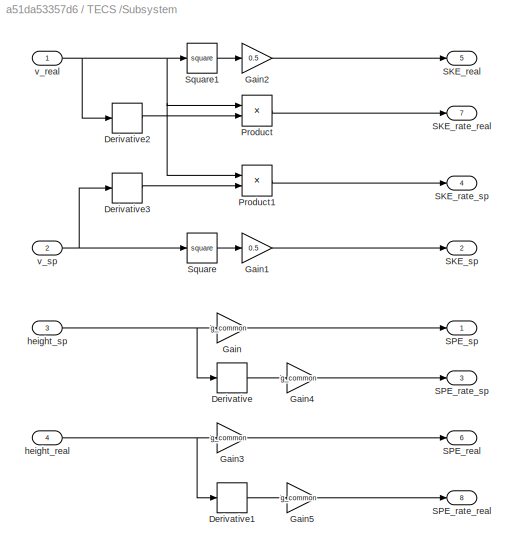
BLOCK [SubSystem] TECS /Subsystem
  Ports = [4, 8]
  RequestExecContextInheritance = off
BLOCK [Derivative] TECS /Subsystem/Derivative
BLOCK [Derivative] TECS /Subsystem/Derivative1
BLOCK [Derivative] TECS /Subsystem/Derivative2
BLOCK [Derivative] TECS /Subsystem/Derivative3
BLOCK [Gain] TECS /Subsystem/Gain
  Gain = g_common
  OutDataTypeStr = Inherit: Inherit via internal rule
  ParamDataTypeStr = Inherit: Inherit via internal rule
  SaturateOnIntegerOverflow = off
BLOCK [Gain] TECS /Subsystem/Gain1
  Gain = 0.5
  OutDataTypeStr = Inherit: Inherit via internal rule
  ParamDataTypeStr = Inherit: Inherit via internal rule
  SaturateOnIntegerOverflow = off
BLOCK [Gain] TECS /Subsystem/Gain2
  Gain = 0.5
  OutDataTypeStr = Inherit: Inherit via internal rule
  ParamDataTypeStr = Inherit: Inherit via internal rule
  SaturateOnIntegerOverflow = off
BLOCK [Gain] TECS /Subsystem/Gain3
  Gain = g_common
  OutDataTypeStr = Inherit: Inherit via internal rule
  ParamDataTypeStr = Inherit: Inherit via internal rule
  SaturateOnIntegerOverflow = off
BLOCK [Gain] TECS /Subsystem/Gain4
  Gain = g_common
  OutDataTypeStr = Inherit: Inherit via internal rule
  ParamDataTypeStr = Inherit: Inherit via internal rule
  SaturateOnIntegerOverflow = off
BLOCK [Gain] TECS /Subsystem/Gain5
  Gain = g_common
  OutDataTypeStr = Inherit: Inherit via internal rule
  ParamDataTypeStr = Inherit: Inherit via internal rule
  SaturateOnIntegerOverflow = off
BLOCK [Product] TECS /Subsystem/Product
  InputSameDT = off
  OutDataTypeStr = Inherit: Inherit via internal rule
  Ports = [2, 1]
  RndMeth = Floor
  SaturateOnIntegerOverflow = off
BLOCK [Product] TECS /Subsystem/Product1
  InputSameDT = off
  OutDataTypeStr = Inherit: Inherit via internal rule
  Ports = [2, 1]
  RndMeth = Floor
  SaturateOnIntegerOverflow = off
BLOCK [Outport] TECS /Subsystem/SKE_rate_real
  IconDisplay = Port number
  Port = 7
BLOCK [Outport] TECS /Subsystem/SKE_rate_sp
  IconDisplay = Port number
  Port = 4
BLOCK [Outport] TECS /Subsystem/SKE_real
  IconDisplay = Port number
  Port = 5
BLOCK [Outport] TECS /Subsystem/SKE_sp
  IconDisplay = Port number
  Port = 2
BLOCK [Outport] TECS /Subsystem/SPE_rate_real
  IconDisplay = Port number
  Port = 8
BLOCK [Outport] TECS /Subsystem/SPE_rate_sp
  IconDisplay = Port number
  Port = 3
BLOCK [Outport] TECS /Subsystem/SPE_real
  IconDisplay = Port number
  Port = 6
BLOCK [Outport] TECS /Subsystem/SPE_sp
  IconDisplay = Port number
BLOCK [Math] TECS /Subsystem/Square
  Operator = square
  Ports = [1, 1]
BLOCK [Math] TECS /Subsystem/Square1
  Operator = square
  Ports = [1, 1]
BLOCK [Inport] TECS /Subsystem/height_real
  IconDisplay = Port number
  Port = 4
BLOCK [Inport] TECS /Subsystem/height_sp
  IconDisplay = Port number
  Port = 3
BLOCK [Inport] TECS /Subsystem/v_real
  IconDisplay = Port number
BLOCK [Inport] TECS /Subsystem/v_sp
  IconDisplay = Port number
  Port = 2
BLOCK [SubSystem] TECS /Subsystem1
  Ports = [4, 1]
  RequestExecContextInheritance = off
BLOCK [Gain] TECS /Subsystem1/Gain
  OutDataTypeStr = Inherit: Inherit via internal rule
  ParamDataTypeStr = Inherit: Inherit via internal rule
  SaturateOnIntegerOverflow = off
BLOCK [Gain] TECS /Subsystem1/Gain1
  OutDataTypeStr = Inherit: Inherit via internal rule
  ParamDataTypeStr = Inherit: Inherit via internal rule
  SaturateOnIntegerOverflow = off
BLOCK [Gain] TECS /Subsystem1/Gain2
  OutDataTypeStr = Inherit: Inherit via internal rule
  ParamDataTypeStr = Inherit: Inherit via internal rule
  SaturateOnIntegerOverflow = off
BLOCK [Gain] TECS /Subsystem1/Gain3
  OutDataTypeStr = Inherit: Inherit via internal rule
  ParamDataTypeStr = Inherit: Inherit via internal rule
  SaturateOnIntegerOverflow = off
BLOCK [Gain] TECS /Subsystem1/Gain4
  OutDataTypeStr = Inherit: Inherit via internal rule
  ParamDataTypeStr = Inherit: Inherit via internal rule
  SaturateOnIntegerOverflow = off
BLOCK [Inport] TECS /Subsystem1/In1
  IconDisplay = Port number
BLOCK [Inport] TECS /Subsystem1/In2
  IconDisplay = Port number
  Port = 2
BLOCK [Inport] TECS /Subsystem1/In3
  IconDisplay = Port number
  Port = 3
BLOCK [Inport] TECS /Subsystem1/In4
  IconDisplay = Port number
  Port = 4
BLOCK [Outport] TECS /Subsystem1/Out1
  IconDisplay = Port number
BLOCK [Sum] TECS /Subsystem1/Sum
  IconShape = round
  InputSameDT = off
  Inputs = |-+
  OutDataTypeStr = Inherit: Inherit via internal rule
  Ports = [2, 1]
  SaturateOnIntegerOverflow = off
BLOCK [Sum] TECS /Subsystem1/Sum1
  IconShape = round
  InputSameDT = off
  Inputs = |-+
  OutDataTypeStr = Inherit: Inherit via internal rule
  Ports = [2, 1]
  SaturateOnIntegerOverflow = off
BLOCK [Sum] TECS /Subsystem1/Sum2
  IconShape = round
  InputSameDT = off
  Inputs = |+++
  OutDataTypeStr = Inherit: Inherit via internal rule
  Ports = [3, 1]
  SaturateOnIntegerOverflow = off
BLOCK [Sum] TECS /Subsystem1/Sum3
  IconShape = round
  InputSameDT = off
  Inputs = |++
  OutDataTypeStr = Inherit: Inherit via internal rule
  Ports = [2, 1]
  SaturateOnIntegerOverflow = off
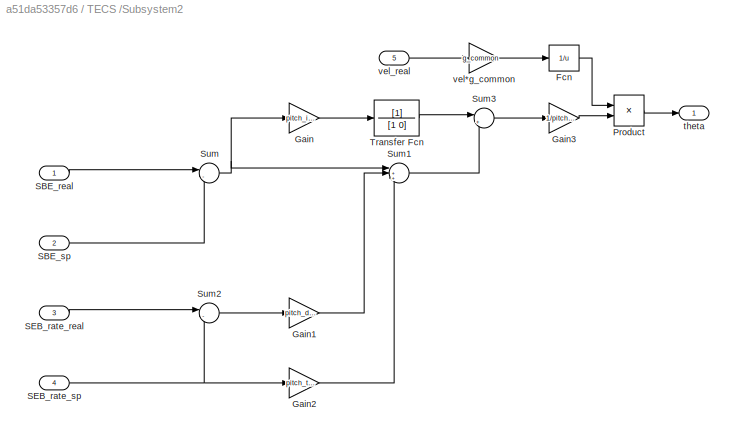
BLOCK [SubSystem] TECS /Subsystem2
  Ports = [5, 1]
  RequestExecContextInheritance = off
BLOCK [Fcn] TECS /Subsystem2/Fcn
  Expr = 1/u
BLOCK [Gain] TECS /Subsystem2/Gain
  Gain = pitch_integ_gain
  OutDataTypeStr = Inherit: Inherit via internal rule
  ParamDataTypeStr = Inherit: Inherit via internal rule
  SaturateOnIntegerOverflow = off
BLOCK [Gain] TECS /Subsystem2/Gain1
  Gain = pitch_damping_gain
  OutDataTypeStr = Inherit: Inherit via internal rule
  ParamDataTypeStr = Inherit: Inherit via internal rule
  SaturateOnIntegerOverflow = off
BLOCK [Gain] TECS /Subsystem2/Gain2
  Gain = pitch_time_constant
  OutDataTypeStr = Inherit: Inherit via internal rule
  ParamDataTypeStr = Inherit: Inherit via internal rule
  SaturateOnIntegerOverflow = off
BLOCK [Gain] TECS /Subsystem2/Gain3
  Gain = 1/pitch_time_constant
  OutDataTypeStr = Inherit: Inherit via internal rule
  ParamDataTypeStr = Inherit: Inherit via internal rule
  SaturateOnIntegerOverflow = off
BLOCK [Product] TECS /Subsystem2/Product
  InputSameDT = off
  OutDataTypeStr = Inherit: Inherit via internal rule
  Ports = [2, 1]
  RndMeth = Floor
  SaturateOnIntegerOverflow = off
BLOCK [Inport] TECS /Subsystem2/SBE_real
  IconDisplay = Port number
BLOCK [Inport] TECS /Subsystem2/SBE_sp
  IconDisplay = Port number
  Port = 2
BLOCK [Inport] TECS /Subsystem2/SEB_rate_real
  IconDisplay = Port number
  Port = 3
BLOCK [Inport] TECS /Subsystem2/SEB_rate_sp
  IconDisplay = Port number
  Port = 4
BLOCK [Sum] TECS /Subsystem2/Sum
  IconShape = round
  InputSameDT = off
  Inputs = |-+
  OutDataTypeStr = Inherit: Inherit via internal rule
  Ports = [2, 1]
  SaturateOnIntegerOverflow = off
BLOCK [Sum] TECS /Subsystem2/Sum1
  IconShape = round
  InputSameDT = off
  Inputs = |+++
  OutDataTypeStr = Inherit: Inherit via internal rule
  Ports = [3, 1]
  SaturateOnIntegerOverflow = off
BLOCK [Sum] TECS /Subsystem2/Sum2
  IconShape = round
  InputSameDT = off
  Inputs = |-+
  OutDataTypeStr = Inherit: Inherit via internal rule
  Ports = [2, 1]
  SaturateOnIntegerOverflow = off
BLOCK [Sum] TECS /Subsystem2/Sum3
  IconShape = round
  InputSameDT = off
  Inputs = |++
  OutDataTypeStr = Inherit: Inherit via internal rule
  Ports = [2, 1]
  SaturateOnIntegerOverflow = off
BLOCK [TransferFcn] TECS /Subsystem2/Transfer Fcn
  Denominator = [1 0]
BLOCK [Outport] TECS /Subsystem2/theta
  IconDisplay = Port number
BLOCK [Gain] TECS /Subsystem2/vel*g_common
  Gain = g_common
  OutDataTypeStr = Inherit: Inherit via internal rule
  ParamDataTypeStr = Inherit: Inherit via internal rule
  SaturateOnIntegerOverflow = off
BLOCK [Inport] TECS /Subsystem2/vel_real
  IconDisplay = Port number
  Port = 5
BLOCK [Inport] TECS /height_real
  IconDisplay = Port number
  Port = 4
BLOCK [Inport] TECS /height_sp
  IconDisplay = Port number
  Port = 3
BLOCK [Outport] TECS /theta 
  IconDisplay = Port number
  Port = 2
BLOCK [Outport] TECS /thrust
  IconDisplay = Port number
BLOCK [Inport] TECS /v_real
  IconDisplay = Port number
BLOCK [Inport] TECS /v_sp
  IconDisplay = Port number
  Port = 2
BLOCK [SubSystem] TECS-PLANE
  Ports = [1, 1]
  RequestExecContextInheritance = off
BLOCK [SubSystem] TECS-PLANE/PLANE
  Ports = [1, 1]
  RequestExecContextInheritance = off
BLOCK [Constant] TECS-PLANE/PLANE/Constant
  Value = 0
BLOCK [Gain] TECS-PLANE/PLANE/Gain
  Gain = g_common*mass_plane
  OutDataTypeStr = Inherit: Inherit via internal rule
  ParamDataTypeStr = Inherit: Inherit via internal rule
  SaturateOnIntegerOverflow = off
BLOCK [Gain] TECS-PLANE/PLANE/Gain1
  Gain = 1/mass_plane
  OutDataTypeStr = Inherit: Inherit via internal rule
  ParamDataTypeStr = Inherit: Inherit via internal rule
  SaturateOnIntegerOverflow = off
BLOCK [Gain] TECS-PLANE/PLANE/Gain2
  Gain = 0.5*rou*Cd
  OutDataTypeStr = Inherit: Inherit via internal rule
  ParamDataTypeStr = Inherit: Inherit via internal rule
  SaturateOnIntegerOverflow = off
BLOCK [Trigonometry] TECS-PLANE/PLANE/Sin
  Ports = [1, 1]
BLOCK [Math] TECS-PLANE/PLANE/Square
  Operator = square
  Ports = [1, 1]
BLOCK [Sum] TECS-PLANE/PLANE/Sum
  IconShape = round
  InputSameDT = off
  Inputs = |+-
  OutDataTypeStr = Inherit: Inherit via internal rule
  Ports = [2, 1]
  SaturateOnIntegerOverflow = off
BLOCK [Sum] TECS-PLANE/PLANE/Sum1
  IconShape = round
  InputSameDT = off
  Inputs = |+-
  OutDataTypeStr = Inherit: Inherit via internal rule
  Ports = [2, 1]
  SaturateOnIntegerOverflow = off
BLOCK [TransferFcn] TECS-PLANE/PLANE/Transfer Fcn
  Denominator = [1 0]
BLOCK [Gain] TECS-PLANE/PLANE/roter_rate_force
  Gain = 2*g_common
  OutDataTypeStr = Inherit: Inherit via internal rule
  ParamDataTypeStr = Inherit: Inherit via internal rule
  SaturateOnIntegerOverflow = off
BLOCK [Gain] TECS-PLANE/PLANE/scale_to_roter
  OutDataTypeStr = Inherit: Inherit via internal rule
  ParamDataTypeStr = Inherit: Inherit via internal rule
  SaturateOnIntegerOverflow = off
BLOCK [Inport] TECS-PLANE/PLANE/thrust
  IconDisplay = Port number
BLOCK [Outport] TECS-PLANE/PLANE/v_real
  IconDisplay = Port number
BLOCK [Saturate] TECS-PLANE/Saturation
  InputPortMap = u0
  LowerLimit = 0
  Ports = [1, 1]
  UpperLimit = 1
  ZeroCross = off
BLOCK [Scope] TECS-PLANE/Scope
  Floating = off
  NumInputPorts = 1
  Ports = [1]
  ScopeSpecificationString = Simulink.scopes.TimeScopeBlockCfg('CurrentConfiguration', extmgr.ConfigurationSet(extmgr.Configuration('Core','General UI',true),extmgr.Configuration('Core','Source UI',true),extmgr.Configuration('Sources','WiredSimulink',true,'DataLoggingVariableName','ScopeData2'),extmgr.Configuration('Visuals','Time Domain',true,'SerializedDisplays',{struct('MinYLimReal','0.21352','MaxYLimReal','1.08739','YLabe...<+1420ch>
BLOCK [SubSystem] TECS-PLANE/TECS 
  Ports = [2, 1]
  RequestExecContextInheritance = off
BLOCK [Gain] TECS-PLANE/TECS /E_dot->T
  Gain = 1/(timeConstThrot*(climb_max*g_common-sink_max*g_common))
  OutDataTypeStr = Inherit: Inherit via internal rule
  ParamDataTypeStr = Inherit: Inherit via internal rule
  SaturateOnIntegerOverflow = off
BLOCK [Integrator] TECS-PLANE/TECS /Integrator
  Ports = [1, 1]
BLOCK [Gain] TECS-PLANE/TECS /KD
  Gain = 0.5
  OutDataTypeStr = Inherit: Inherit via internal rule
  ParamDataTypeStr = Inherit: Inherit via internal rule
  SaturateOnIntegerOverflow = off
BLOCK [Gain] TECS-PLANE/TECS /KI
  Gain = 0.8
  OutDataTypeStr = Inherit: Inherit via internal rule
  ParamDataTypeStr = Inherit: Inherit via internal rule
  SaturateOnIntegerOverflow = off
BLOCK [SubSystem] TECS-PLANE/TECS /SKE&SKE_dot
  Ports = [2, 4]
  RequestExecContextInheritance = off
BLOCK [Derivative] TECS-PLANE/TECS /SKE&SKE_dot/Derivative
BLOCK [Derivative] TECS-PLANE/TECS /SKE&SKE_dot/Derivative1
BLOCK [Gain] TECS-PLANE/TECS /SKE&SKE_dot/Gain
  Gain = 0.5
  OutDataTypeStr = Inherit: Inherit via internal rule
  ParamDataTypeStr = Inherit: Inherit via internal rule
  SaturateOnIntegerOverflow = off
BLOCK [Gain] TECS-PLANE/TECS /SKE&SKE_dot/Gain1
  Gain = 0.5
  OutDataTypeStr = Inherit: Inherit via internal rule
  ParamDataTypeStr = Inherit: Inherit via internal rule
  SaturateOnIntegerOverflow = off
BLOCK [Product] TECS-PLANE/TECS /SKE&SKE_dot/Product
  InputSameDT = off
  OutDataTypeStr = Inherit: Inherit via internal rule
  Ports = [2, 1]
  RndMeth = Floor
  SaturateOnIntegerOverflow = off
BLOCK [Product] TECS-PLANE/TECS /SKE&SKE_dot/Product1
  InputSameDT = off
  OutDataTypeStr = Inherit: Inherit via internal rule
  Ports = [2, 1]
  RndMeth = Floor
  SaturateOnIntegerOverflow = off
BLOCK [Math] TECS-PLANE/TECS /SKE&SKE_dot/Square
  Operator = square
  Ports = [1, 1]
BLOCK [Math] TECS-PLANE/TECS /SKE&SKE_dot/Square1
  Operator = square
  Ports = [1, 1]
BLOCK [Outport] TECS-PLANE/TECS /SKE&SKE_dot/e_dot_rel
  IconDisplay = Port number
  Port = 4
BLOCK [Outport] TECS-PLANE/TECS /SKE&SKE_dot/e_dot_sp
  IconDisplay = Port number
  Port = 3
BLOCK [Outport] TECS-PLANE/TECS /SKE&SKE_dot/e_rel
  IconDisplay = Port number
  Port = 2
BLOCK [Outport] TECS-PLANE/TECS /SKE&SKE_dot/e_sp
  IconDisplay = Port number
BLOCK [Inport] TECS-PLANE/TECS /SKE&SKE_dot/v_rel
  IconDisplay = Port number
  Port = 2
BLOCK [Inport] TECS-PLANE/TECS /SKE&SKE_dot/v_sp
  IconDisplay = Port number
BLOCK [Sum] TECS-PLANE/TECS /Sum
  IconShape = round
  InputSameDT = off
  Inputs = |+-
  OutDataTypeStr = Inherit: Inherit via internal rule
  Ports = [2, 1]
  SaturateOnIntegerOverflow = off
BLOCK [Sum] TECS-PLANE/TECS /Sum1
  IconShape = round
  InputSameDT = off
  Inputs = +++
  OutDataTypeStr = Inherit: Inherit via internal rule
  Ports = [3, 1]
  SaturateOnIntegerOverflow = off
BLOCK [Sum] TECS-PLANE/TECS /Sum2
  IconShape = round
  InputSameDT = off
  Inputs = |+-
  OutDataTypeStr = Inherit: Inherit via internal rule
  Ports = [2, 1]
  SaturateOnIntegerOverflow = off
BLOCK [Sum] TECS-PLANE/TECS /Sum3
  IconShape = round
  InputSameDT = off
  Inputs = |++
  OutDataTypeStr = Inherit: Inherit via internal rule
  Ports = [2, 1]
  SaturateOnIntegerOverflow = off
BLOCK [Switch] TECS-PLANE/TECS /Switch
  Criteria = u2 > Threshold
  InputSameDT = off
  SaturateOnIntegerOverflow = off
  ZeroCross = off
BLOCK [SubSystem] TECS-PLANE/TECS /dem<0
  Ports = [1, 1]
  RequestExecContextInheritance = off
BLOCK [Constant] TECS-PLANE/TECS /dem<0/Constant
  Value = nomThr
BLOCK [Gain] TECS-PLANE/TECS /dem<0/Gain
  Gain = 1/(sink_max*g_common)
  OutDataTypeStr = Inherit: Inherit via internal rule
  ParamDataTypeStr = Inherit: Inherit via internal rule
  SaturateOnIntegerOverflow = off
BLOCK [Gain] TECS-PLANE/TECS /dem<0/Gain1
  Gain = nomThr
  OutDataTypeStr = Inherit: Inherit via internal rule
  ParamDataTypeStr = Inherit: Inherit via internal rule
  SaturateOnIntegerOverflow = off
BLOCK [Outport] TECS-PLANE/TECS /dem<0/Out1
  IconDisplay = Port number
BLOCK [Sum] TECS-PLANE/TECS /dem<0/Sum
  IconShape = round
  InputSameDT = off
  Inputs = |+-
  OutDataTypeStr = Inherit: Inherit via internal rule
  Ports = [2, 1]
  SaturateOnIntegerOverflow = off
BLOCK [Inport] TECS-PLANE/TECS /dem<0/e_dot_sp
  IconDisplay = Port number
BLOCK [SubSystem] TECS-PLANE/TECS /dem>=0
  Ports = [1, 1]
  RequestExecContextInheritance = off
BLOCK [Constant] TECS-PLANE/TECS /dem>=0/Constant
  Value = nomThr
BLOCK [Gain] TECS-PLANE/TECS /dem>=0/Gain
  Gain = 1/(climb_max*g_common)
  OutDataTypeStr = Inherit: Inherit via internal rule
  ParamDataTypeStr = Inherit: Inherit via internal rule
  SaturateOnIntegerOverflow = off
BLOCK [Gain] TECS-PLANE/TECS /dem>=0/Gain1
  Gain = 1-nomThr
  OutDataTypeStr = Inherit: Inherit via internal rule
  ParamDataTypeStr = Inherit: Inherit via internal rule
  SaturateOnIntegerOverflow = off
BLOCK [Outport] TECS-PLANE/TECS /dem>=0/Out1
  IconDisplay = Port number
BLOCK [Sum] TECS-PLANE/TECS /dem>=0/Sum
  IconShape = round
  InputSameDT = off
  Inputs = |++
  OutDataTypeStr = Inherit: Inherit via internal rule
  Ports = [2, 1]
  SaturateOnIntegerOverflow = off
BLOCK [Inport] TECS-PLANE/TECS /dem>=0/e_dot_sp
  IconDisplay = Port number
BLOCK [Outport] TECS-PLANE/TECS /thrust
  IconDisplay = Port number
BLOCK [Gain] TECS-PLANE/TECS /time_const
  Gain = timeConstThrot
  OutDataTypeStr = Inherit: Inherit via internal rule
  ParamDataTypeStr = Inherit: Inherit via internal rule
  SaturateOnIntegerOverflow = off
BLOCK [Inport] TECS-PLANE/TECS /v_real
  IconDisplay = Port number
  Port = 2
BLOCK [Inport] TECS-PLANE/TECS /v_sp
  IconDisplay = Port number
BLOCK [Outport] TECS-PLANE/v_real
  IconDisplay = Port number
BLOCK [Inport] TECS-PLANE/v_sp
  IconDisplay = Port number
BLOCK [SubSystem] TECS-PLANE3
  Ports = [1, 1]
  RequestExecContextInheritance = off
BLOCK [SubSystem] TECS-PLANE3/PLANE
  Ports = [1, 1]
  RequestExecContextInheritance = off
BLOCK [Constant] TECS-PLANE3/PLANE/Constant
  Value = 0
BLOCK [Gain] TECS-PLANE3/PLANE/Gain
  Gain = g_common*mass_plane
  OutDataTypeStr = Inherit: Inherit via internal rule
  ParamDataTypeStr = Inherit: Inherit via internal rule
  SaturateOnIntegerOverflow = off
BLOCK [Gain] TECS-PLANE3/PLANE/Gain1
  Gain = 1/mass_plane
  OutDataTypeStr = Inherit: Inherit via internal rule
  ParamDataTypeStr = Inherit: Inherit via internal rule
  SaturateOnIntegerOverflow = off
BLOCK [Gain] TECS-PLANE3/PLANE/Gain2
  Gain = 0.5*rou*Cd
  OutDataTypeStr = Inherit: Inherit via internal rule
  ParamDataTypeStr = Inherit: Inherit via internal rule
  SaturateOnIntegerOverflow = off
BLOCK [Trigonometry] TECS-PLANE3/PLANE/Sin
  Ports = [1, 1]
BLOCK [Math] TECS-PLANE3/PLANE/Square
  Operator = square
  Ports = [1, 1]
BLOCK [Sum] TECS-PLANE3/PLANE/Sum
  IconShape = round
  InputSameDT = off
  Inputs = |+-
  OutDataTypeStr = Inherit: Inherit via internal rule
  Ports = [2, 1]
  SaturateOnIntegerOverflow = off
BLOCK [Sum] TECS-PLANE3/PLANE/Sum1
  IconShape = round
  InputSameDT = off
  Inputs = |+-
  OutDataTypeStr = Inherit: Inherit via internal rule
  Ports = [2, 1]
  SaturateOnIntegerOverflow = off
BLOCK [TransferFcn] TECS-PLANE3/PLANE/Transfer Fcn
  Denominator = [1 0]
BLOCK [Gain] TECS-PLANE3/PLANE/roter_rate_force
  Gain = 2*g_common
  OutDataTypeStr = Inherit: Inherit via internal rule
  ParamDataTypeStr = Inherit: Inherit via internal rule
  SaturateOnIntegerOverflow = off
BLOCK [Gain] TECS-PLANE3/PLANE/scale_to_roter
  OutDataTypeStr = Inherit: Inherit via internal rule
  ParamDataTypeStr = Inherit: Inherit via internal rule
  SaturateOnIntegerOverflow = off
BLOCK [Inport] TECS-PLANE3/PLANE/thrust
  IconDisplay = Port number
BLOCK [Outport] TECS-PLANE3/PLANE/v_real
  IconDisplay = Port number
BLOCK [Saturate] TECS-PLANE3/Saturation
  InputPortMap = u0
  LowerLimit = 0
  Ports = [1, 1]
  UpperLimit = 1
  ZeroCross = off
BLOCK [Scope] TECS-PLANE3/Scope
  Floating = off
  NumInputPorts = 1
  Ports = [1]
  ScopeSpecificationString = Simulink.scopes.TimeScopeBlockCfg('CurrentConfiguration', extmgr.ConfigurationSet(extmgr.Configuration('Core','General UI',true),extmgr.Configuration('Core','Source UI',true),extmgr.Configuration('Sources','WiredSimulink',true,'DataLoggingVariableName','ScopeData2'),extmgr.Configuration('Visuals','Time Domain',true,'SerializedDisplays',{struct('MinYLimReal','-0.125','MaxYLimReal','1.125','YLabelRe...<+1429ch>
BLOCK [SubSystem] TECS-PLANE3/TECS 
  Ports = [2, 1]
  RequestExecContextInheritance = off
BLOCK [Gain] TECS-PLANE3/TECS /E_dot->T
  Gain = 1/(timeConstThrot*(climb_max*g_common-sink_max*g_common))
  OutDataTypeStr = Inherit: Inherit via internal rule
  ParamDataTypeStr = Inherit: Inherit via internal rule
  SaturateOnIntegerOverflow = off
BLOCK [Integrator] TECS-PLANE3/TECS /Integrator
  Ports = [1, 1]
BLOCK [Gain] TECS-PLANE3/TECS /KD
  Gain = 0.5
  OutDataTypeStr = Inherit: Inherit via internal rule
  ParamDataTypeStr = Inherit: Inherit via internal rule
  SaturateOnIntegerOverflow = off
BLOCK [Gain] TECS-PLANE3/TECS /KI
  Gain = 0.8
  OutDataTypeStr = Inherit: Inherit via internal rule
  ParamDataTypeStr = Inherit: Inherit via internal rule
  SaturateOnIntegerOverflow = off
BLOCK [SubSystem] TECS-PLANE3/TECS /SKE&SKE_dot
  Ports = [2, 4]
  RequestExecContextInheritance = off
BLOCK [Derivative] TECS-PLANE3/TECS /SKE&SKE_dot/Derivative
BLOCK [Derivative] TECS-PLANE3/TECS /SKE&SKE_dot/Derivative1
BLOCK [Gain] TECS-PLANE3/TECS /SKE&SKE_dot/Gain
  Gain = 0.5
  OutDataTypeStr = Inherit: Inherit via internal rule
  ParamDataTypeStr = Inherit: Inherit via internal rule
  SaturateOnIntegerOverflow = off
BLOCK [Gain] TECS-PLANE3/TECS /SKE&SKE_dot/Gain1
  Gain = 0.5
  OutDataTypeStr = Inherit: Inherit via internal rule
  ParamDataTypeStr = Inherit: Inherit via internal rule
  SaturateOnIntegerOverflow = off
BLOCK [Product] TECS-PLANE3/TECS /SKE&SKE_dot/Product
  InputSameDT = off
  OutDataTypeStr = Inherit: Inherit via internal rule
  Ports = [2, 1]
  RndMeth = Floor
  SaturateOnIntegerOverflow = off
BLOCK [Product] TECS-PLANE3/TECS /SKE&SKE_dot/Product1
  InputSameDT = off
  OutDataTypeStr = Inherit: Inherit via internal rule
  Ports = [2, 1]
  RndMeth = Floor
  SaturateOnIntegerOverflow = off
BLOCK [Math] TECS-PLANE3/TECS /SKE&SKE_dot/Square
  Operator = square
  Ports = [1, 1]
BLOCK [Math] TECS-PLANE3/TECS /SKE&SKE_dot/Square1
  Operator = square
  Ports = [1, 1]
BLOCK [Outport] TECS-PLANE3/TECS /SKE&SKE_dot/e_dot_rel
  IconDisplay = Port number
  Port = 4
BLOCK [Outport] TECS-PLANE3/TECS /SKE&SKE_dot/e_dot_sp
  IconDisplay = Port number
  Port = 3
BLOCK [Outport] TECS-PLANE3/TECS /SKE&SKE_dot/e_rel
  IconDisplay = Port number
  Port = 2
BLOCK [Outport] TECS-PLANE3/TECS /SKE&SKE_dot/e_sp
  IconDisplay = Port number
BLOCK [Inport] TECS-PLANE3/TECS /SKE&SKE_dot/v_rel
  IconDisplay = Port number
  Port = 2
BLOCK [Inport] TECS-PLANE3/TECS /SKE&SKE_dot/v_sp
  IconDisplay = Port number
BLOCK [Sum] TECS-PLANE3/TECS /Sum
  IconShape = round
  InputSameDT = off
  Inputs = |+-
  OutDataTypeStr = Inherit: Inherit via internal rule
  Ports = [2, 1]
  SaturateOnIntegerOverflow = off
BLOCK [Sum] TECS-PLANE3/TECS /Sum1
  IconShape = round
  InputSameDT = off
  Inputs = +++
  OutDataTypeStr = Inherit: Inherit via internal rule
  Ports = [3, 1]
  SaturateOnIntegerOverflow = off
BLOCK [Sum] TECS-PLANE3/TECS /Sum2
  IconShape = round
  InputSameDT = off
  Inputs = |+-
  OutDataTypeStr = Inherit: Inherit via internal rule
  Ports = [2, 1]
  SaturateOnIntegerOverflow = off
BLOCK [Sum] TECS-PLANE3/TECS /Sum3
  IconShape = round
  InputSameDT = off
  Inputs = |++
  OutDataTypeStr = Inherit: Inherit via internal rule
  Ports = [2, 1]
  SaturateOnIntegerOverflow = off
BLOCK [Switch] TECS-PLANE3/TECS /Switch
  Criteria = u2 > Threshold
  InputSameDT = off
  SaturateOnIntegerOverflow = off
  ZeroCross = off
BLOCK [SubSystem] TECS-PLANE3/TECS /dem<0
  Ports = [1, 1]
  RequestExecContextInheritance = off
BLOCK [Constant] TECS-PLANE3/TECS /dem<0/Constant
  Value = nomThr
BLOCK [Gain] TECS-PLANE3/TECS /dem<0/Gain
  Gain = 1/(sink_max*g_common)
  OutDataTypeStr = Inherit: Inherit via internal rule
  ParamDataTypeStr = Inherit: Inherit via internal rule
  SaturateOnIntegerOverflow = off
BLOCK [Gain] TECS-PLANE3/TECS /dem<0/Gain1
  Gain = nomThr
  OutDataTypeStr = Inherit: Inherit via internal rule
  ParamDataTypeStr = Inherit: Inherit via internal rule
  SaturateOnIntegerOverflow = off
BLOCK [Outport] TECS-PLANE3/TECS /dem<0/Out1
  IconDisplay = Port number
BLOCK [Sum] TECS-PLANE3/TECS /dem<0/Sum
  IconShape = round
  InputSameDT = off
  Inputs = |+-
  OutDataTypeStr = Inherit: Inherit via internal rule
  Ports = [2, 1]
  SaturateOnIntegerOverflow = off
BLOCK [Inport] TECS-PLANE3/TECS /dem<0/e_dot_sp
  IconDisplay = Port number
BLOCK [SubSystem] TECS-PLANE3/TECS /dem>=0
  Ports = [1, 1]
  RequestExecContextInheritance = off
BLOCK [Constant] TECS-PLANE3/TECS /dem>=0/Constant
  Value = nomThr
BLOCK [Gain] TECS-PLANE3/TECS /dem>=0/Gain
  Gain = 1/(climb_max*g_common)
  OutDataTypeStr = Inherit: Inherit via internal rule
  ParamDataTypeStr = Inherit: Inherit via internal rule
  SaturateOnIntegerOverflow = off
BLOCK [Gain] TECS-PLANE3/TECS /dem>=0/Gain1
  Gain = 1-nomThr
  OutDataTypeStr = Inherit: Inherit via internal rule
  ParamDataTypeStr = Inherit: Inherit via internal rule
  SaturateOnIntegerOverflow = off
BLOCK [Outport] TECS-PLANE3/TECS /dem>=0/Out1
  IconDisplay = Port number
BLOCK [Sum] TECS-PLANE3/TECS /dem>=0/Sum
  IconShape = round
  InputSameDT = off
  Inputs = |++
  OutDataTypeStr = Inherit: Inherit via internal rule
  Ports = [2, 1]
  SaturateOnIntegerOverflow = off
BLOCK [Inport] TECS-PLANE3/TECS /dem>=0/e_dot_sp
  IconDisplay = Port number
BLOCK [Outport] TECS-PLANE3/TECS /thrust
  IconDisplay = Port number
BLOCK [Gain] TECS-PLANE3/TECS /time_const
  Gain = timeConstThrot
  OutDataTypeStr = Inherit: Inherit via internal rule
  ParamDataTypeStr = Inherit: Inherit via internal rule
  SaturateOnIntegerOverflow = off
BLOCK [Inport] TECS-PLANE3/TECS /v_real
  IconDisplay = Port number
  Port = 2
BLOCK [Inport] TECS-PLANE3/TECS /v_sp
  IconDisplay = Port number
BLOCK [ZeroOrderHold] TECS-PLANE3/Zero-Order Hold
  SampleTime = -1
BLOCK [Outport] TECS-PLANE3/v_real
  IconDisplay = Port number
BLOCK [Inport] TECS-PLANE3/v_sp
  IconDisplay = Port number
BLOCK [ToWorkspace] To Workspace
  FixptAsFi = on
  MaxDataPoints = inf
  Ports = [1]
  SampleTime = -1
  SaveFormat = Timeseries
  VariableName = V_real
BLOCK [ToWorkspace] To Workspace1
  FixptAsFi = on
  MaxDataPoints = inf
  Ports = [1]
  SampleTime = -1
  SaveFormat = Timeseries
  VariableName = height
BLOCK [Gain] kp_p
  Gain = 0.8
  OutDataTypeStr = Inherit: Inherit via internal rule
  ParamDataTypeStr = Inherit: Inherit via internal rule
  SaturateOnIntegerOverflow = off
BLOCK [Gain] kv_p
  Gain = 0.5
  OutDataTypeStr = Inherit: Inherit via internal rule
  ParamDataTypeStr = Inherit: Inherit via internal rule
  SaturateOnIntegerOverflow = off
BLOCK [Scope] pos_error
  Floating = off
  NumInputPorts = 1
  Ports = [1]
  ScopeSpecificationString = Simulink.scopes.TimeScopeBlockCfg('CurrentConfiguration', extmgr.ConfigurationSet(extmgr.Configuration('Core','General UI',true),extmgr.Configuration('Core','Source UI',true),extmgr.Configuration('Sources','WiredSimulink',true),extmgr.Configuration('Visuals','Time Domain',true,'SerializedDisplays',{struct('MinYLimReal','-6.42112','MaxYLimReal','57.34606','YLabelReal','','MinYLimMag','0.00000','Max...<+1374ch>
BLOCK [Scope] pos_error1
  Floating = off
  NumInputPorts = 1
  Ports = [1]
  ScopeSpecificationString = Simulink.scopes.TimeScopeBlockCfg('CurrentConfiguration', extmgr.ConfigurationSet(extmgr.Configuration('Core','General UI',true),extmgr.Configuration('Core','Source UI',true),extmgr.Configuration('Sources','WiredSimulink',true,'DataLoggingVariableName','ScopeData1'),extmgr.Configuration('Visuals','Time Domain',true,'SerializedDisplays',{struct('MinYLimReal','-22.73181','MaxYLimReal','62.85841','YL...<+1421ch>
BLOCK [Scope] v
  Floating = off
  NumInputPorts = 1
  Ports = [1]
  ScopeSpecificationString = Simulink.scopes.TimeScopeBlockCfg('CurrentConfiguration', extmgr.ConfigurationSet(extmgr.Configuration('Core','General UI',true),extmgr.Configuration('Core','Source UI',true),extmgr.Configuration('Sources','WiredSimulink',true,'DataLoggingVariableName','ScopeData1'),extmgr.Configuration('Visuals','Time Domain',true,'SerializedDisplays',{struct('MinYLimReal','-1.35352','MaxYLimReal','12.18172','YLa...<+1414ch>
BLOCK [Scope] v1
  Floating = off
  NumInputPorts = 1
  Ports = [1]
  ScopeSpecificationString = Simulink.scopes.TimeScopeBlockCfg('CurrentConfiguration', extmgr.ConfigurationSet(extmgr.Configuration('Core','General UI',true),extmgr.Configuration('Core','Source UI',true),extmgr.Configuration('Sources','WiredSimulink',true,'DataLoggingVariableName','ScopeData2'),extmgr.Configuration('Visuals','Time Domain',true,'SerializedDisplays',{struct('MinYLimReal','-1.70609','MaxYLimReal','15.35485','YLa...<+1457ch>
BLOCK [Constant] vel_leader
  Value = 10
BLOCK [Constant] vel_leader1
  Value = 10
ANNOTATION (root): FIXED_WING_ARSPEED_CHANNEL author:lee-shun <email> Assumptions: The leader is flying by a fixed constant airspeed without accleeration. 2. All the equations are formulated in the relative position coordination. 3. The other channels are ignored and there are no errors in them.
LINE Constant1:1 -> TECS :3
LINE Constant:1 -> TECS :2
NET Gain:1 -> Integrator the initial situation is 100m:1, Mux:1, Sum1:1
NET Integrator the initial situation is 100m:1 -> Sum2:2, Sum:1
NET Integrator the initial situation is 50m1:1 -> Sum3:1, Sum5:2
NET Integrator1:1 -> Sum2:1, Sum:2
NET Integrator2:1 -> Sum3:2, Sum5:1
LINE Mux1:1 -> v1:1
LINE Mux:1 -> v:1
LINE P Controller:1 -> Sum1:2
NET PID Controller:1 -> Mux1:2, TECS-PLANE3:1
LINE PLANE/Gain1:1 -> PLANE/Transfer Fcn:1
LINE PLANE/Gain2:1 -> PLANE/Sum1:2
LINE PLANE/Gain:1 -> PLANE/Sum:2
LINE PLANE/Product:1 -> PLANE/Transfer Fcn1:1
NET PLANE/Sin:1 -> PLANE/Gain:1, PLANE/Product:2
LINE PLANE/Square:1 -> PLANE/Gain2:1
LINE PLANE/Sum1:1 -> PLANE/Gain1:1
LINE PLANE/Sum:1 -> PLANE/Sum1:1
LINE PLANE/Transfer Fcn1:1 -> PLANE/height:1
NET PLANE/Transfer Fcn:1 -> PLANE/Product:1, PLANE/Square:1, PLANE/v_real:1
LINE PLANE/roter_rate_force:1 -> PLANE/Sum:1
LINE PLANE/scale_to_roter kg:1 -> PLANE/roter_rate_force:1
LINE PLANE/theta:1 -> PLANE/Sin:1
LINE PLANE/thrust:1 -> PLANE/scale_to_roter kg:1
NET PLANE:1 -> Scope:1, TECS :1, To Workspace:1
NET PLANE:2 -> Scope1:1, TECS :4, To Workspace1:1
LINE Saturation1:1 -> Gain1:1
LINE Saturation2:1 -> PLANE:1
LINE Saturation3:1 -> PLANE:2
LINE Saturation:1 -> Gain:1
LINE Sine Wave1:1 -> Saturation1:1
LINE Sine Wave:1 -> Saturation:1
NET Sum1:1 -> Mux:2, TECS-PLANE:1
LINE Sum2:1 -> pos_error:1
LINE Sum3:1 -> kp_p:1
LINE Sum4:1 -> kv_p:1
LINE Sum5:1 -> pos_error1:1
LINE Sum6:1 -> PID Controller:1
LINE Sum:1 -> P Controller:1
LINE TECS /SBE/SKE_rate_real:1 -> TECS /SBE/Sum2:2
LINE TECS /SBE/SKE_rate_sp:1 -> TECS /SBE/Sum3:2
LINE TECS /SBE/SKE_real:1 -> TECS /SBE/Sum1:2
LINE TECS /SBE/SKE_sp:1 -> TECS /SBE/Sum:2
LINE TECS /SBE/SPE_rate_real:1 -> TECS /SBE/Sum2:1
LINE TECS /SBE/SPE_rate_sp:1 -> TECS /SBE/Sum3:1
LINE TECS /SBE/SPE_real:1 -> TECS /SBE/Sum1:1
LINE TECS /SBE/SPE_sp:1 -> TECS /SBE/Sum:1
LINE TECS /SBE/Sum1:1 -> TECS /SBE/SBE_real:1
LINE TECS /SBE/Sum2:1 -> TECS /SBE/SBE_rate_real:1
LINE TECS /SBE/Sum3:1 -> TECS /SBE/SBE_rate_sp:1
LINE TECS /SBE/Sum:1 -> TECS /SBE/SBE_sp:1
LINE TECS /SBE:1 -> TECS /Subsystem2:1
LINE TECS /SBE:2 -> TECS /Subsystem2:2
LINE TECS /SBE:3 -> TECS /Subsystem2:3
LINE TECS /SBE:4 -> TECS /Subsystem2:4
LINE TECS /STE/SKE_rate_real:1 -> TECS /STE/Sum2:1
LINE TECS /STE/SKE_rate_sp:1 -> TECS /STE/Sum3:2
LINE TECS /STE/SKE_real:1 -> TECS /STE/Sum1:1
LINE TECS /STE/SKE_sp:1 -> TECS /STE/Sum:2
LINE TECS /STE/SPE_rate_real:1 -> TECS /STE/Sum2:2
LINE TECS /STE/SPE_rate_sp:1 -> TECS /STE/Sum3:1
LINE TECS /STE/SPE_real:1 -> TECS /STE/Sum1:2
LINE TECS /STE/SPE_sp:1 -> TECS /STE/Sum:1
LINE TECS /STE/Sum1:1 -> TECS /STE/STE_real:1
LINE TECS /STE/Sum2:1 -> TECS /STE/STE_rate_real:1
LINE TECS /STE/Sum3:1 -> TECS /STE/STE_rate_sp:1
LINE TECS /STE/Sum:1 -> TECS /STE/STE_sp:1
LINE TECS /STE:1 -> TECS /Subsystem1:1
LINE TECS /STE:2 -> TECS /Subsystem1:2
LINE TECS /STE:3 -> TECS /Subsystem1:3
LINE TECS /STE:4 -> TECS /Subsystem1:4
LINE TECS /Subsystem/Derivative1:1 -> TECS /Subsystem/Gain5:1
LINE TECS /Subsystem/Derivative2:1 -> TECS /Subsystem/Product:2
LINE TECS /Subsystem/Derivative3:1 -> TECS /Subsystem/Product1:2
LINE TECS /Subsystem/Derivative:1 -> TECS /Subsystem/Gain4:1
LINE TECS /Subsystem/Gain1:1 -> TECS /Subsystem/SKE_sp:1
LINE TECS /Subsystem/Gain2:1 -> TECS /Subsystem/SKE_real:1
LINE TECS /Subsystem/Gain3:1 -> TECS /Subsystem/SPE_real:1
LINE TECS /Subsystem/Gain4:1 -> TECS /Subsystem/SPE_rate_sp:1
LINE TECS /Subsystem/Gain5:1 -> TECS /Subsystem/SPE_rate_real:1
LINE TECS /Subsystem/Gain:1 -> TECS /Subsystem/SPE_sp:1
LINE TECS /Subsystem/Product1:1 -> TECS /Subsystem/SKE_rate_sp:1
LINE TECS /Subsystem/Product:1 -> TECS /Subsystem/SKE_rate_real:1
LINE TECS /Subsystem/Square1:1 -> TECS /Subsystem/Gain2:1
LINE TECS /Subsystem/Square:1 -> TECS /Subsystem/Gain1:1
NET TECS /Subsystem/height_real:1 -> TECS /Subsystem/Derivative1:1, TECS /Subsystem/Gain3:1
NET TECS /Subsystem/height_sp:1 -> TECS /Subsystem/Derivative:1, TECS /Subsystem/Gain:1
NET TECS /Subsystem/v_real:1 -> TECS /Subsystem/Derivative2:1, TECS /Subsystem/Product1:1, TECS /Subsystem/Product:1, TECS /Subsystem/Square1:1
NET TECS /Subsystem/v_sp:1 -> TECS /Subsystem/Derivative3:1, TECS /Subsystem/Square:1
LINE TECS /Subsystem1/Gain1:1 -> TECS /Subsystem1/Sum2:3
LINE TECS /Subsystem1/Gain2:1 -> TECS /Subsystem1/Sum3:2
LINE TECS /Subsystem1/Gain3:1 -> TECS /Subsystem1/Sum3:1
LINE TECS /Subsystem1/Gain4:1 -> TECS /Subsystem1/Gain3:1
LINE TECS /Subsystem1/Gain:1 -> TECS /Subsystem1/Sum2:1
LINE TECS /Subsystem1/In1:1 -> TECS /Subsystem1/Sum:1
LINE TECS /Subsystem1/In2:1 -> TECS /Subsystem1/Sum:2
LINE TECS /Subsystem1/In3:1 -> TECS /Subsystem1/Sum1:1
NET TECS /Subsystem1/In4:1 -> TECS /Subsystem1/Gain2:1, TECS /Subsystem1/Sum1:2
LINE TECS /Subsystem1/Sum1:1 -> TECS /Subsystem1/Gain1:1
LINE TECS /Subsystem1/Sum2:1 -> TECS /Subsystem1/Gain4:1
LINE TECS /Subsystem1/Sum3:1 -> TECS /Subsystem1/Out1:1
NET TECS /Subsystem1/Sum:1 -> TECS /Subsystem1/Gain:1, TECS /Subsystem1/Sum2:2
LINE TECS /Subsystem1:1 -> TECS /thrust:1
LINE TECS /Subsystem2/Fcn:1 -> TECS /Subsystem2/Product:1
LINE TECS /Subsystem2/Gain1:1 -> TECS /Subsystem2/Sum1:2
LINE TECS /Subsystem2/Gain2:1 -> TECS /Subsystem2/Sum1:3
LINE TECS /Subsystem2/Gain3:1 -> TECS /Subsystem2/Product:2
LINE TECS /Subsystem2/Gain:1 -> TECS /Subsystem2/Transfer Fcn:1
LINE TECS /Subsystem2/Product:1 -> TECS /Subsystem2/theta:1
LINE TECS /Subsystem2/SBE_real:1 -> TECS /Subsystem2/Sum:1
LINE TECS /Subsystem2/SBE_sp:1 -> TECS /Subsystem2/Sum:2
LINE TECS /Subsystem2/SEB_rate_real:1 -> TECS /Subsystem2/Sum2:1
NET TECS /Subsystem2/SEB_rate_sp:1 -> TECS /Subsystem2/Gain2:1, TECS /Subsystem2/Sum2:2
LINE TECS /Subsystem2/Sum1:1 -> TECS /Subsystem2/Sum3:2
LINE TECS /Subsystem2/Sum2:1 -> TECS /Subsystem2/Gain1:1
LINE TECS /Subsystem2/Sum3:1 -> TECS /Subsystem2/Gain3:1
NET TECS /Subsystem2/Sum:1 -> TECS /Subsystem2/Gain:1, TECS /Subsystem2/Sum1:1
LINE TECS /Subsystem2/Transfer Fcn:1 -> TECS /Subsystem2/Sum3:1
LINE TECS /Subsystem2/vel*g_common:1 -> TECS /Subsystem2/Fcn:1
LINE TECS /Subsystem2/vel_real:1 -> TECS /Subsystem2/vel*g_common:1
LINE TECS /Subsystem2:1 -> TECS /theta :1
NET TECS /Subsystem:1 -> TECS /SBE:1, TECS /STE:1
NET TECS /Subsystem:2 -> TECS /SBE:2, TECS /STE:2
NET TECS /Subsystem:3 -> TECS /SBE:3, TECS /STE:3
NET TECS /Subsystem:4 -> TECS /SBE:4, TECS /STE:4
NET TECS /Subsystem:5 -> TECS /SBE:5, TECS /STE:5
NET TECS /Subsystem:6 -> TECS /SBE:6, TECS /STE:6
NET TECS /Subsystem:7 -> TECS /SBE:7, TECS /STE:7
NET TECS /Subsystem:8 -> TECS /SBE:8, TECS /STE:8
LINE TECS /height_real:1 -> TECS /Subsystem:4
LINE TECS /height_sp:1 -> TECS /Subsystem:3
NET TECS /v_real:1 -> TECS /Subsystem2:5, TECS /Subsystem:1
LINE TECS /v_sp:1 -> TECS /Subsystem:2
LINE TECS :1 -> Saturation2:1
LINE TECS :2 -> Saturation3:1
LINE TECS-PLANE/PLANE/Constant:1 -> TECS-PLANE/PLANE/Sin:1
LINE TECS-PLANE/PLANE/Gain1:1 -> TECS-PLANE/PLANE/Transfer Fcn:1
LINE TECS-PLANE/PLANE/Gain2:1 -> TECS-PLANE/PLANE/Sum1:2
LINE TECS-PLANE/PLANE/Gain:1 -> TECS-PLANE/PLANE/Sum:2
LINE TECS-PLANE/PLANE/Sin:1 -> TECS-PLANE/PLANE/Gain:1
LINE TECS-PLANE/PLANE/Square:1 -> TECS-PLANE/PLANE/Gain2:1
LINE TECS-PLANE/PLANE/Sum1:1 -> TECS-PLANE/PLANE/Gain1:1
LINE TECS-PLANE/PLANE/Sum:1 -> TECS-PLANE/PLANE/Sum1:1
NET TECS-PLANE/PLANE/Transfer Fcn:1 -> TECS-PLANE/PLANE/Square:1, TECS-PLANE/PLANE/v_real:1
LINE TECS-PLANE/PLANE/roter_rate_force:1 -> TECS-PLANE/PLANE/Sum:1
LINE TECS-PLANE/PLANE/scale_to_roter:1 -> TECS-PLANE/PLANE/roter_rate_force:1
LINE TECS-PLANE/PLANE/thrust:1 -> TECS-PLANE/PLANE/scale_to_roter:1
NET TECS-PLANE/PLANE:1 -> TECS-PLANE/TECS :2, TECS-PLANE/v_real:1
NET TECS-PLANE/Saturation:1 -> TECS-PLANE/PLANE:1, TECS-PLANE/Scope:1
LINE TECS-PLANE/TECS /E_dot->T:1 -> TECS-PLANE/TECS /Sum3:1
LINE TECS-PLANE/TECS /Integrator:1 -> TECS-PLANE/TECS /Sum1:1
LINE TECS-PLANE/TECS /KD:1 -> TECS-PLANE/TECS /Sum1:3
LINE TECS-PLANE/TECS /KI:1 -> TECS-PLANE/TECS /Integrator:1
LINE TECS-PLANE/TECS /SKE&SKE_dot/Derivative1:1 -> TECS-PLANE/TECS /SKE&SKE_dot/Product:1
LINE TECS-PLANE/TECS /SKE&SKE_dot/Derivative:1 -> TECS-PLANE/TECS /SKE&SKE_dot/Product1:1
LINE TECS-PLANE/TECS /SKE&SKE_dot/Gain1:1 -> TECS-PLANE/TECS /SKE&SKE_dot/e_rel:1
LINE TECS-PLANE/TECS /SKE&SKE_dot/Gain:1 -> TECS-PLANE/TECS /SKE&SKE_dot/e_sp:1
LINE TECS-PLANE/TECS /SKE&SKE_dot/Product1:1 -> TECS-PLANE/TECS /SKE&SKE_dot/e_dot_rel:1
LINE TECS-PLANE/TECS /SKE&SKE_dot/Product:1 -> TECS-PLANE/TECS /SKE&SKE_dot/e_dot_sp:1
LINE TECS-PLANE/TECS /SKE&SKE_dot/Square1:1 -> TECS-PLANE/TECS /SKE&SKE_dot/Gain1:1
LINE TECS-PLANE/TECS /SKE&SKE_dot/Square:1 -> TECS-PLANE/TECS /SKE&SKE_dot/Gain:1
NET TECS-PLANE/TECS /SKE&SKE_dot/v_rel:1 -> TECS-PLANE/TECS /SKE&SKE_dot/Derivative:1, TECS-PLANE/TECS /SKE&SKE_dot/Product1:2, TECS-PLANE/TECS /SKE&SKE_dot/Product:2, TECS-PLANE/TECS /SKE&SKE_dot/Square1:1
NET TECS-PLANE/TECS /SKE&SKE_dot/v_sp:1 -> TECS-PLANE/TECS /SKE&SKE_dot/Derivative1:1, TECS-PLANE/TECS /SKE&SKE_dot/Square:1
LINE TECS-PLANE/TECS /SKE&SKE_dot:1 -> TECS-PLANE/TECS /Sum:1
LINE TECS-PLANE/TECS /SKE&SKE_dot:2 -> TECS-PLANE/TECS /Sum:2
NET TECS-PLANE/TECS /SKE&SKE_dot:3 -> TECS-PLANE/TECS /Sum2:1, TECS-PLANE/TECS /Switch:2, TECS-PLANE/TECS /dem<0:1, TECS-PLANE/TECS /dem>=0:1
LINE TECS-PLANE/TECS /SKE&SKE_dot:4 -> TECS-PLANE/TECS /Sum2:2
LINE TECS-PLANE/TECS /Sum1:1 -> TECS-PLANE/TECS /time_const:1
LINE TECS-PLANE/TECS /Sum2:1 -> TECS-PLANE/TECS /KD:1
LINE TECS-PLANE/TECS /Sum3:1 -> TECS-PLANE/TECS /thrust:1
NET TECS-PLANE/TECS /Sum:1 -> TECS-PLANE/TECS /KI:1, TECS-PLANE/TECS /Sum1:2
LINE TECS-PLANE/TECS /Switch:1 -> TECS-PLANE/TECS /Sum3:2
LINE TECS-PLANE/TECS /dem<0/Constant:1 -> TECS-PLANE/TECS /dem<0/Sum:1
LINE TECS-PLANE/TECS /dem<0/Gain1:1 -> TECS-PLANE/TECS /dem<0/Sum:2
LINE TECS-PLANE/TECS /dem<0/Gain:1 -> TECS-PLANE/TECS /dem<0/Gain1:1
LINE TECS-PLANE/TECS /dem<0/Sum:1 -> TECS-PLANE/TECS /dem<0/Out1:1
LINE TECS-PLANE/TECS /dem<0/e_dot_sp:1 -> TECS-PLANE/TECS /dem<0/Gain:1
LINE TECS-PLANE/TECS /dem<0:1 -> TECS-PLANE/TECS /Switch:3
LINE TECS-PLANE/TECS /dem>=0/Constant:1 -> TECS-PLANE/TECS /dem>=0/Sum:1
LINE TECS-PLANE/TECS /dem>=0/Gain1:1 -> TECS-PLANE/TECS /dem>=0/Sum:2
LINE TECS-PLANE/TECS /dem>=0/Gain:1 -> TECS-PLANE/TECS /dem>=0/Gain1:1
LINE TECS-PLANE/TECS /dem>=0/Sum:1 -> TECS-PLANE/TECS /dem>=0/Out1:1
LINE TECS-PLANE/TECS /dem>=0/e_dot_sp:1 -> TECS-PLANE/TECS /dem>=0/Gain:1
LINE TECS-PLANE/TECS /dem>=0:1 -> TECS-PLANE/TECS /Switch:1
LINE TECS-PLANE/TECS /time_const:1 -> TECS-PLANE/TECS /E_dot->T:1
LINE TECS-PLANE/TECS /v_real:1 -> TECS-PLANE/TECS /SKE&SKE_dot:2
LINE TECS-PLANE/TECS /v_sp:1 -> TECS-PLANE/TECS /SKE&SKE_dot:1
LINE TECS-PLANE/TECS :1 -> TECS-PLANE/Saturation:1
LINE TECS-PLANE/v_sp:1 -> TECS-PLANE/TECS :1
LINE TECS-PLANE3/PLANE/Constant:1 -> TECS-PLANE3/PLANE/Sin:1
LINE TECS-PLANE3/PLANE/Gain1:1 -> TECS-PLANE3/PLANE/Transfer Fcn:1
LINE TECS-PLANE3/PLANE/Gain2:1 -> TECS-PLANE3/PLANE/Sum1:2
LINE TECS-PLANE3/PLANE/Gain:1 -> TECS-PLANE3/PLANE/Sum:2
LINE TECS-PLANE3/PLANE/Sin:1 -> TECS-PLANE3/PLANE/Gain:1
LINE TECS-PLANE3/PLANE/Square:1 -> TECS-PLANE3/PLANE/Gain2:1
LINE TECS-PLANE3/PLANE/Sum1:1 -> TECS-PLANE3/PLANE/Gain1:1
LINE TECS-PLANE3/PLANE/Sum:1 -> TECS-PLANE3/PLANE/Sum1:1
NET TECS-PLANE3/PLANE/Transfer Fcn:1 -> TECS-PLANE3/PLANE/Square:1, TECS-PLANE3/PLANE/v_real:1
LINE TECS-PLANE3/PLANE/roter_rate_force:1 -> TECS-PLANE3/PLANE/Sum:1
LINE TECS-PLANE3/PLANE/scale_to_roter:1 -> TECS-PLANE3/PLANE/roter_rate_force:1
LINE TECS-PLANE3/PLANE/thrust:1 -> TECS-PLANE3/PLANE/scale_to_roter:1
NET TECS-PLANE3/PLANE:1 -> TECS-PLANE3/TECS :2, TECS-PLANE3/v_real:1
NET TECS-PLANE3/Saturation:1 -> TECS-PLANE3/PLANE:1, TECS-PLANE3/Scope:1
LINE TECS-PLANE3/TECS /E_dot->T:1 -> TECS-PLANE3/TECS /Sum3:1
LINE TECS-PLANE3/TECS /Integrator:1 -> TECS-PLANE3/TECS /Sum1:1
LINE TECS-PLANE3/TECS /KD:1 -> TECS-PLANE3/TECS /Sum1:3
LINE TECS-PLANE3/TECS /KI:1 -> TECS-PLANE3/TECS /Integrator:1
LINE TECS-PLANE3/TECS /SKE&SKE_dot/Derivative1:1 -> TECS-PLANE3/TECS /SKE&SKE_dot/Product:1
LINE TECS-PLANE3/TECS /SKE&SKE_dot/Derivative:1 -> TECS-PLANE3/TECS /SKE&SKE_dot/Product1:1
LINE TECS-PLANE3/TECS /SKE&SKE_dot/Gain1:1 -> TECS-PLANE3/TECS /SKE&SKE_dot/e_rel:1
LINE TECS-PLANE3/TECS /SKE&SKE_dot/Gain:1 -> TECS-PLANE3/TECS /SKE&SKE_dot/e_sp:1
LINE TECS-PLANE3/TECS /SKE&SKE_dot/Product1:1 -> TECS-PLANE3/TECS /SKE&SKE_dot/e_dot_rel:1
LINE TECS-PLANE3/TECS /SKE&SKE_dot/Product:1 -> TECS-PLANE3/TECS /SKE&SKE_dot/e_dot_sp:1
LINE TECS-PLANE3/TECS /SKE&SKE_dot/Square1:1 -> TECS-PLANE3/TECS /SKE&SKE_dot/Gain1:1
LINE TECS-PLANE3/TECS /SKE&SKE_dot/Square:1 -> TECS-PLANE3/TECS /SKE&SKE_dot/Gain:1
NET TECS-PLANE3/TECS /SKE&SKE_dot/v_rel:1 -> TECS-PLANE3/TECS /SKE&SKE_dot/Derivative:1, TECS-PLANE3/TECS /SKE&SKE_dot/Product1:2, TECS-PLANE3/TECS /SKE&SKE_dot/Product:2, TECS-PLANE3/TECS /SKE&SKE_dot/Square1:1
NET TECS-PLANE3/TECS /SKE&SKE_dot/v_sp:1 -> TECS-PLANE3/TECS /SKE&SKE_dot/Derivative1:1, TECS-PLANE3/TECS /SKE&SKE_dot/Square:1
LINE TECS-PLANE3/TECS /SKE&SKE_dot:1 -> TECS-PLANE3/TECS /Sum:1
LINE TECS-PLANE3/TECS /SKE&SKE_dot:2 -> TECS-PLANE3/TECS /Sum:2
NET TECS-PLANE3/TECS /SKE&SKE_dot:3 -> TECS-PLANE3/TECS /Sum2:1, TECS-PLANE3/TECS /Switch:2, TECS-PLANE3/TECS /dem<0:1, TECS-PLANE3/TECS /dem>=0:1
LINE TECS-PLANE3/TECS /SKE&SKE_dot:4 -> TECS-PLANE3/TECS /Sum2:2
LINE TECS-PLANE3/TECS /Sum1:1 -> TECS-PLANE3/TECS /time_const:1
LINE TECS-PLANE3/TECS /Sum2:1 -> TECS-PLANE3/TECS /KD:1
LINE TECS-PLANE3/TECS /Sum3:1 -> TECS-PLANE3/TECS /thrust:1
NET TECS-PLANE3/TECS /Sum:1 -> TECS-PLANE3/TECS /KI:1, TECS-PLANE3/TECS /Sum1:2
LINE TECS-PLANE3/TECS /Switch:1 -> TECS-PLANE3/TECS /Sum3:2
LINE TECS-PLANE3/TECS /dem<0/Constant:1 -> TECS-PLANE3/TECS /dem<0/Sum:1
LINE TECS-PLANE3/TECS /dem<0/Gain1:1 -> TECS-PLANE3/TECS /dem<0/Sum:2
LINE TECS-PLANE3/TECS /dem<0/Gain:1 -> TECS-PLANE3/TECS /dem<0/Gain1:1
LINE TECS-PLANE3/TECS /dem<0/Sum:1 -> TECS-PLANE3/TECS /dem<0/Out1:1
LINE TECS-PLANE3/TECS /dem<0/e_dot_sp:1 -> TECS-PLANE3/TECS /dem<0/Gain:1
LINE TECS-PLANE3/TECS /dem<0:1 -> TECS-PLANE3/TECS /Switch:3
LINE TECS-PLANE3/TECS /dem>=0/Constant:1 -> TECS-PLANE3/TECS /dem>=0/Sum:1
LINE TECS-PLANE3/TECS /dem>=0/Gain1:1 -> TECS-PLANE3/TECS /dem>=0/Sum:2
LINE TECS-PLANE3/TECS /dem>=0/Gain:1 -> TECS-PLANE3/TECS /dem>=0/Gain1:1
LINE TECS-PLANE3/TECS /dem>=0/Sum:1 -> TECS-PLANE3/TECS /dem>=0/Out1:1
LINE TECS-PLANE3/TECS /dem>=0/e_dot_sp:1 -> TECS-PLANE3/TECS /dem>=0/Gain:1
LINE TECS-PLANE3/TECS /dem>=0:1 -> TECS-PLANE3/TECS /Switch:1
LINE TECS-PLANE3/TECS /time_const:1 -> TECS-PLANE3/TECS /E_dot->T:1
LINE TECS-PLANE3/TECS /v_real:1 -> TECS-PLANE3/TECS /SKE&SKE_dot:2
LINE TECS-PLANE3/TECS /v_sp:1 -> TECS-PLANE3/TECS /SKE&SKE_dot:1
LINE TECS-PLANE3/TECS :1 -> TECS-PLANE3/Zero-Order Hold:1
LINE TECS-PLANE3/Zero-Order Hold:1 -> TECS-PLANE3/Saturation:1
LINE TECS-PLANE3/v_sp:1 -> TECS-PLANE3/TECS :1
NET TECS-PLANE3:1 -> Integrator2:1, Mux1:3, Sum4:2
NET TECS-PLANE:1 -> Integrator1:1, Mux:3
LINE kp_p:1 -> Sum6:2
LINE kv_p:1 -> Sum6:1
NET vel_leader1:1 -> Integrator the initial situation is 50m1:1, Mux1:1, Sum4:1
note: NET lines group one-source signal fan-out (src -> all destinations, sorted); 1:1 wires keep LINE
